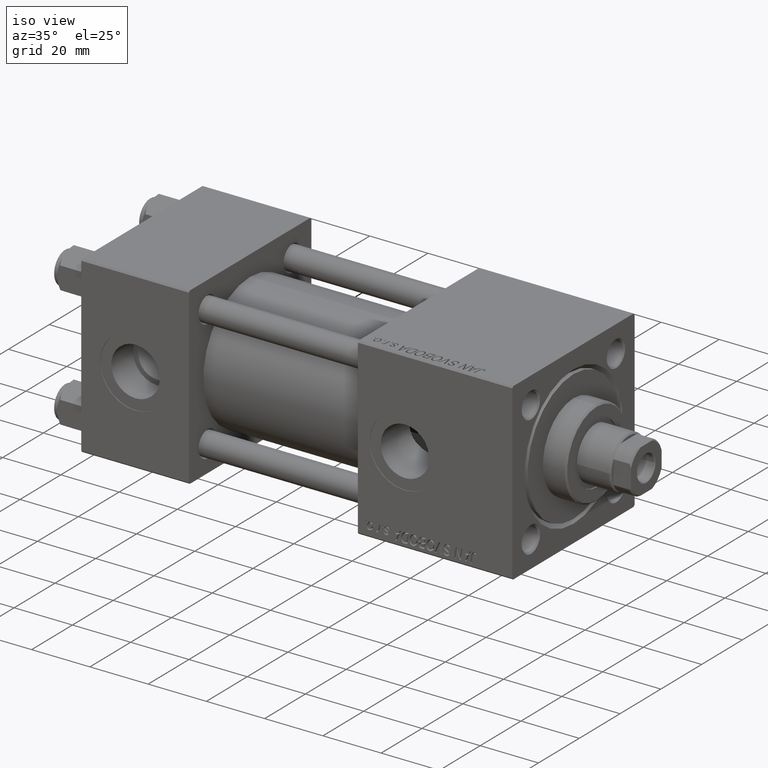
[diagram: clean part render]
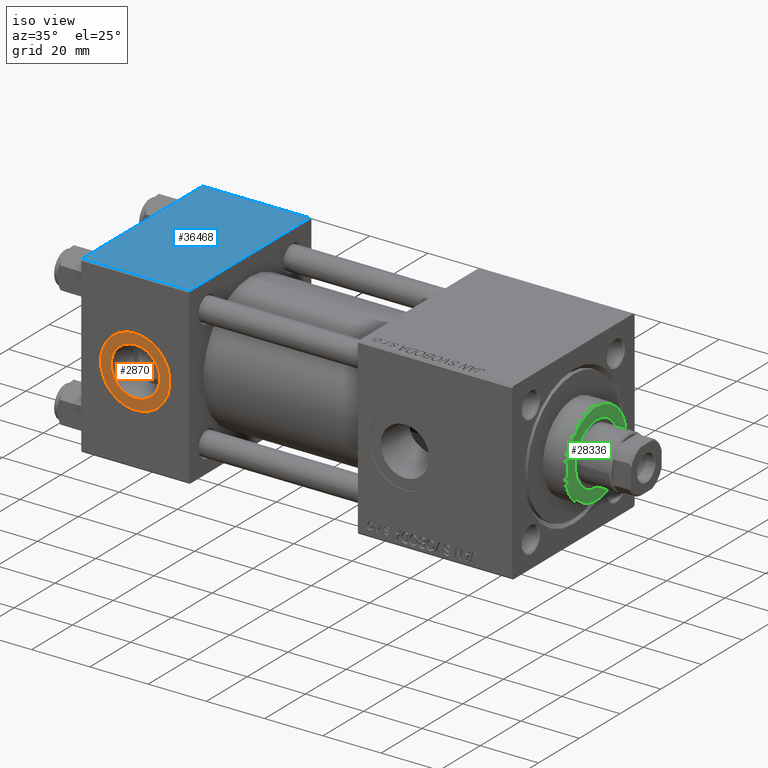
[diagram: same view with three faces highlighted in distinct colors, each labeled with its STEP entity id]
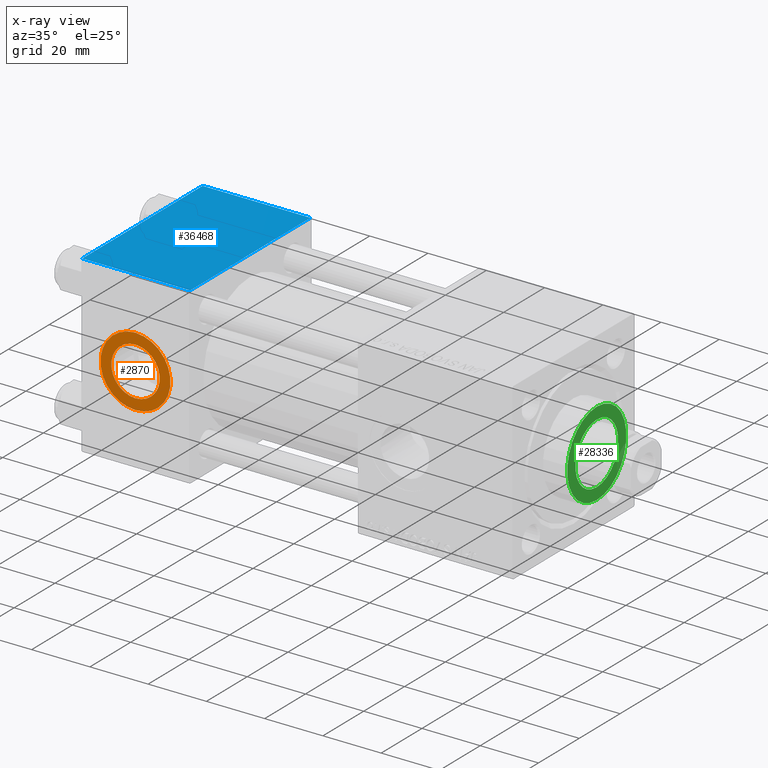
[diagram: x-ray of the same camera — body ghosted, the three highlighted faces saturated]
A machine part, iso view with three faces highlighted in distinct colors.
The next image is the same camera in x-ray (body ghosted, the three faces saturated) — at least one of them is partly hidden behind the body in this view.
Their STEP definitions:

[orange] entity #2870 — the highlighted planar face has unit normal (0, -1, -0).
#194 = CIRCLE ( 'NONE', #46654, 12.00000000000000178 ) ;
#1107 = VERTEX_POINT ( 'NONE', #21062 ) ;
#1249 = CIRCLE ( 'NONE', #18993, 12.00000000000000178 ) ;
#1256 = EDGE_CURVE ( 'NONE', #51621, #14964, #46341, .T. ) ;
#2870 = ADVANCED_FACE ( 'NONE', ( #23806, #43633 ), #44159, .T. ) ;
#2880 = CARTESIAN_POINT ( 'NONE',  ( 18.50000000000000000, -29.80000000000000071, 8.330000000000001847 ) ) ;
#7404 = DIRECTION ( 'NONE',  ( 0.000000000000000000, 8.673617379884036705E-17, -1.000000000000000000 ) ) ;
#7535 = DIRECTION ( 'NONE',  ( 0.000000000000000000, -1.000000000000000000, -8.673617379884036705E-17 ) ) ;
#7782 = ORIENTED_EDGE ( 'NONE', *, *, #46753, .F. ) ;
#8053 = DIRECTION ( 'NONE',  ( 0.000000000000000000, 0.000000000000000000, -1.000000000000000000 ) ) ;
#13118 = DIRECTION ( 'NONE',  ( 0.000000000000000000, 0.000000000000000000, -1.000000000000000000 ) ) ;
#14964 = VERTEX_POINT ( 'NONE', #2880 ) ;
#16564 = DIRECTION ( 'NONE',  ( 0.000000000000000000, -1.000000000000000000, -8.673617379884036705E-17 ) ) ;
#17433 = CARTESIAN_POINT ( 'NONE',  ( 18.50000000000000000, -29.80000000000000071, 1.734723475976808635E-17 ) ) ;
#18353 = EDGE_LOOP ( 'NONE', ( #49088, #37480 ) ) ;
#18993 = AXIS2_PLACEMENT_3D ( 'NONE', #48221, #27358, #43479 ) ;
#21062 = CARTESIAN_POINT ( 'NONE',  ( 18.50000000000000000, -29.80000000000000071, -12.00000000000000178 ) ) ;
#22811 = CARTESIAN_POINT ( 'NONE',  ( 18.50000000000000000, -29.80000000000000071, 12.00000000000000178 ) ) ;
#23132 = AXIS2_PLACEMENT_3D ( 'NONE', #51281, #47848, #7404 ) ;
#23404 = CARTESIAN_POINT ( 'NONE',  ( 18.50000000000000000, -29.80000000000000071, 1.734723475976808635E-17 ) ) ;
#23806 = FACE_BOUND ( 'NONE', #29964, .T. ) ;
#26549 = EDGE_CURVE ( 'NONE', #1107, #45800, #194, .T. ) ;
#27358 = DIRECTION ( 'NONE',  ( 0.000000000000000000, -1.000000000000000000, -8.673617379884036705E-17 ) ) ;
#29964 = EDGE_LOOP ( 'NONE', ( #31942, #7782 ) ) ;
#30397 = CIRCLE ( 'NONE', #45634, 8.330000000000001847 ) ;
#30455 = AXIS2_PLACEMENT_3D ( 'NONE', #23404, #7535, #8053 ) ;
#31942 = ORIENTED_EDGE ( 'NONE', *, *, #1256, .F. ) ;
#32708 = CARTESIAN_POINT ( 'NONE',  ( 18.50000000000000000, -29.80000000000000071, 1.734723475976807403E-17 ) ) ;
#33564 = DIRECTION ( 'NONE',  ( 0.000000000000000000, 0.000000000000000000, -1.000000000000000000 ) ) ;
#33954 = EDGE_CURVE ( 'NONE', #45800, #1107, #1249, .T. ) ;
#37480 = ORIENTED_EDGE ( 'NONE', *, *, #33954, .T. ) ;
#41497 = DIRECTION ( 'NONE',  ( 0.000000000000000000, -1.000000000000000000, -8.673617379884036705E-17 ) ) ;
#42395 = CARTESIAN_POINT ( 'NONE',  ( 18.50000000000000000, -29.80000000000000071, -8.330000000000001847 ) ) ;
#43479 = DIRECTION ( 'NONE',  ( 0.000000000000000000, 0.000000000000000000, -1.000000000000000000 ) ) ;
#43633 = FACE_OUTER_BOUND ( 'NONE', #18353, .T. ) ;
#44159 = PLANE ( 'NONE',  #23132 ) ;
#45634 = AXIS2_PLACEMENT_3D ( 'NONE', #17433, #41497, #33564 ) ;
#45800 = VERTEX_POINT ( 'NONE', #22811 ) ;
#46341 = CIRCLE ( 'NONE', #30455, 8.330000000000001847 ) ;
#46654 = AXIS2_PLACEMENT_3D ( 'NONE', #32708, #16564, #13118 ) ;
#46753 = EDGE_CURVE ( 'NONE', #14964, #51621, #30397, .T. ) ;
#47848 = DIRECTION ( 'NONE',  ( 0.000000000000000000, -1.000000000000000000, -8.673617379884036705E-17 ) ) ;
#48221 = CARTESIAN_POINT ( 'NONE',  ( 18.50000000000000000, -29.80000000000000071, 1.734723475976807403E-17 ) ) ;
#49088 = ORIENTED_EDGE ( 'NONE', *, *, #26549, .T. ) ;
#51281 = CARTESIAN_POINT ( 'NONE',  ( 18.50000000000000000, -29.80000000000000071, 1.734723475976807403E-17 ) ) ;
#51621 = VERTEX_POINT ( 'NONE', #42395 ) ;

[blue] entity #36468 — the highlighted planar face has unit normal (0, 0, -1).
#1649 = CARTESIAN_POINT ( 'NONE',  ( 37.00000000000000000, 29.99999999999999289, 30.00000000000000000 ) ) ;
#2185 = CARTESIAN_POINT ( 'NONE',  ( 37.00000000000000000, -29.50000000000000000, 29.99999999999999289 ) ) ;
#2496 = VECTOR ( 'NONE', #22813, 1000.000000000000000 ) ;
#2526 = CARTESIAN_POINT ( 'NONE',  ( 0.000000000000000000, 29.49999999999999289, 30.00000000000000000 ) ) ;
#5467 = ORIENTED_EDGE ( 'NONE', *, *, #44701, .T. ) ;
#5898 = LINE ( 'NONE', #2185, #2496 ) ;
#6840 = CARTESIAN_POINT ( 'NONE',  ( 37.00000000000000000, 29.49999999999999289, 30.00000000000000000 ) ) ;
#7555 = DIRECTION ( 'NONE',  ( -1.000000000000000000, 0.000000000000000000, 0.000000000000000000 ) ) ;
#9854 = DIRECTION ( 'NONE',  ( 0.000000000000000000, -1.000000000000000000, -1.156482317317871725E-16 ) ) ;
#10118 = LINE ( 'NONE', #1649, #21569 ) ;
#11131 = ORIENTED_EDGE ( 'NONE', *, *, #40827, .T. ) ;
#14567 = CARTESIAN_POINT ( 'NONE',  ( 0.000000000000000000, 29.99999999999999289, 30.00000000000000000 ) ) ;
#15663 = FACE_OUTER_BOUND ( 'NONE', #49027, .T. ) ;
#16854 = VECTOR ( 'NONE', #7555, 1000.000000000000000 ) ;
#17239 = VERTEX_POINT ( 'NONE', #40386 ) ;
#18100 = CARTESIAN_POINT ( 'NONE',  ( 0.000000000000000000, -29.49999999999998579, 29.99999999999999289 ) ) ;
#19893 = DIRECTION ( 'NONE',  ( 0.000000000000000000, 1.000000000000000000, 1.156482317317871725E-16 ) ) ;
#20163 = EDGE_CURVE ( 'NONE', #32856, #17239, #5898, .T. ) ;
#21569 = VECTOR ( 'NONE', #9854, 1000.000000000000000 ) ;
#22813 = DIRECTION ( 'NONE',  ( 1.000000000000000000, 0.000000000000000000, 0.000000000000000000 ) ) ;
#25158 = VECTOR ( 'NONE', #34925, 1000.000000000000000 ) ;
#32856 = VERTEX_POINT ( 'NONE', #18100 ) ;
#34925 = DIRECTION ( 'NONE',  ( 0.000000000000000000, -1.000000000000000000, -1.156482317317871725E-16 ) ) ;
#34968 = CARTESIAN_POINT ( 'NONE',  ( 37.00000000000000000, 29.99999999999999289, 30.00000000000000000 ) ) ;
#35170 = CARTESIAN_POINT ( 'NONE',  ( 0.000000000000000000, 29.49999999999999289, 30.00000000000000000 ) ) ;
#35577 = EDGE_CURVE ( 'NONE', #49678, #17239, #10118, .T. ) ;
#36468 = ADVANCED_FACE ( 'NONE', ( #15663 ), #38933, .F. ) ;
#38472 = AXIS2_PLACEMENT_3D ( 'NONE', #34968, #46853, #19893 ) ;
#38933 = PLANE ( 'NONE',  #38472 ) ;
#40386 = CARTESIAN_POINT ( 'NONE',  ( 37.00000000000000000, -29.49999999999998579, 29.99999999999999289 ) ) ;
#40827 = EDGE_CURVE ( 'NONE', #43668, #32856, #50773, .T. ) ;
#43668 = VERTEX_POINT ( 'NONE', #35170 ) ;
#44701 = EDGE_CURVE ( 'NONE', #49678, #43668, #50903, .T. ) ;
#46853 = DIRECTION ( 'NONE',  ( 0.000000000000000000, 1.156482317317871725E-16, -1.000000000000000000 ) ) ;
#47548 = ORIENTED_EDGE ( 'NONE', *, *, #20163, .T. ) ;
#48589 = ORIENTED_EDGE ( 'NONE', *, *, #35577, .F. ) ;
#49027 = EDGE_LOOP ( 'NONE', ( #11131, #47548, #48589, #5467 ) ) ;
#49678 = VERTEX_POINT ( 'NONE', #6840 ) ;
#50773 = LINE ( 'NONE', #14567, #25158 ) ;
#50903 = LINE ( 'NONE', #2526, #16854 ) ;

[green] entity #28336 — the highlighted planar face has unit normal (1, 0, 0).
#1699 = AXIS2_PLACEMENT_3D ( 'NONE', #14132, #38719, #10441 ) ;
#4482 = CARTESIAN_POINT ( 'NONE',  ( -14.50000000000001776, 0.000000000000000000, 36.69999999999999574 ) ) ;
#4974 = CIRCLE ( 'NONE', #35419, 10.50000000000000000 ) ;
#6978 = AXIS2_PLACEMENT_3D ( 'NONE', #39661, #30425, #27770 ) ;
#7558 = DIRECTION ( 'NONE',  ( 0.000000000000000000, 0.000000000000000000, 1.000000000000000000 ) ) ;
#7876 = EDGE_LOOP ( 'NONE', ( #38846, #28928 ) ) ;
#10441 = DIRECTION ( 'NONE',  ( 1.000000000000000000, 0.000000000000000000, 0.000000000000000000 ) ) ;
#10547 = CARTESIAN_POINT ( 'NONE',  ( 0.000000000000000000, 0.000000000000000000, 36.69999999999999574 ) ) ;
#11829 = VERTEX_POINT ( 'NONE', #4482 ) ;
#12343 = EDGE_CURVE ( 'NONE', #11829, #27317, #17536, .T. ) ;
#14132 = CARTESIAN_POINT ( 'NONE',  ( 0.000000000000000000, 0.000000000000000000, 36.69999999999999574 ) ) ;
#14844 = CARTESIAN_POINT ( 'NONE',  ( 0.000000000000000000, 0.000000000000000000, 36.69999999999999574 ) ) ;
#15348 = FACE_OUTER_BOUND ( 'NONE', #7876, .T. ) ;
#15554 = VERTEX_POINT ( 'NONE', #43960 ) ;
#17536 = CIRCLE ( 'NONE', #47066, 14.50000000000001776 ) ;
#19760 = CARTESIAN_POINT ( 'NONE',  ( 14.50000000000001776, 1.806354028742346985E-15, 36.69999999999999574 ) ) ;
#21685 = EDGE_CURVE ( 'NONE', #27317, #11829, #30399, .T. ) ;
#22338 = ORIENTED_EDGE ( 'NONE', *, *, #23609, .F. ) ;
#23415 = VERTEX_POINT ( 'NONE', #31853 ) ;
#23609 = EDGE_CURVE ( 'NONE', #15554, #23415, #30523, .T. ) ;
#27317 = VERTEX_POINT ( 'NONE', #19760 ) ;
#27770 = DIRECTION ( 'NONE',  ( 1.000000000000000000, 0.000000000000000000, -0.000000000000000000 ) ) ;
#28336 = ADVANCED_FACE ( 'NONE', ( #35444, #15348 ), #34383, .T. ) ;
#28928 = ORIENTED_EDGE ( 'NONE', *, *, #21685, .T. ) ;
#30399 = CIRCLE ( 'NONE', #1699, 14.50000000000001776 ) ;
#30425 = DIRECTION ( 'NONE',  ( 0.000000000000000000, 0.000000000000000000, 1.000000000000000000 ) ) ;
#30523 = CIRCLE ( 'NONE', #43146, 10.50000000000000000 ) ;
#30650 = DIRECTION ( 'NONE',  ( 1.000000000000000000, 0.000000000000000000, 0.000000000000000000 ) ) ;
#31601 = EDGE_LOOP ( 'NONE', ( #44100, #22338 ) ) ;
#31853 = CARTESIAN_POINT ( 'NONE',  ( 10.50000000000000000, 0.000000000000000000, 36.69999999999999574 ) ) ;
#31906 = CARTESIAN_POINT ( 'NONE',  ( 0.000000000000000000, 0.000000000000000000, 36.69999999999999574 ) ) ;
#34383 = PLANE ( 'NONE',  #6978 ) ;
#35419 = AXIS2_PLACEMENT_3D ( 'NONE', #10547, #46751, #30650 ) ;
#35444 = FACE_BOUND ( 'NONE', #31601, .T. ) ;
#38719 = DIRECTION ( 'NONE',  ( 0.000000000000000000, 0.000000000000000000, 1.000000000000000000 ) ) ;
#38846 = ORIENTED_EDGE ( 'NONE', *, *, #12343, .T. ) ;
#39661 = CARTESIAN_POINT ( 'NONE',  ( 0.000000000000000000, 0.000000000000000000, 36.69999999999999574 ) ) ;
#42083 = DIRECTION ( 'NONE',  ( 0.000000000000000000, 0.000000000000000000, 1.000000000000000000 ) ) ;
#43146 = AXIS2_PLACEMENT_3D ( 'NONE', #14844, #42083, #46303 ) ;
#43960 = CARTESIAN_POINT ( 'NONE',  ( -10.50000000000000000, 1.285879139104720831E-15, 36.69999999999999574 ) ) ;
#44100 = ORIENTED_EDGE ( 'NONE', *, *, #48301, .F. ) ;
#46303 = DIRECTION ( 'NONE',  ( 1.000000000000000000, 0.000000000000000000, 0.000000000000000000 ) ) ;
#46751 = DIRECTION ( 'NONE',  ( 0.000000000000000000, 0.000000000000000000, 1.000000000000000000 ) ) ;
#47066 = AXIS2_PLACEMENT_3D ( 'NONE', #31906, #7558, #47478 ) ;
#47478 = DIRECTION ( 'NONE',  ( 1.000000000000000000, 0.000000000000000000, 0.000000000000000000 ) ) ;
#48301 = EDGE_CURVE ( 'NONE', #23415, #15554, #4974, .T. ) ;